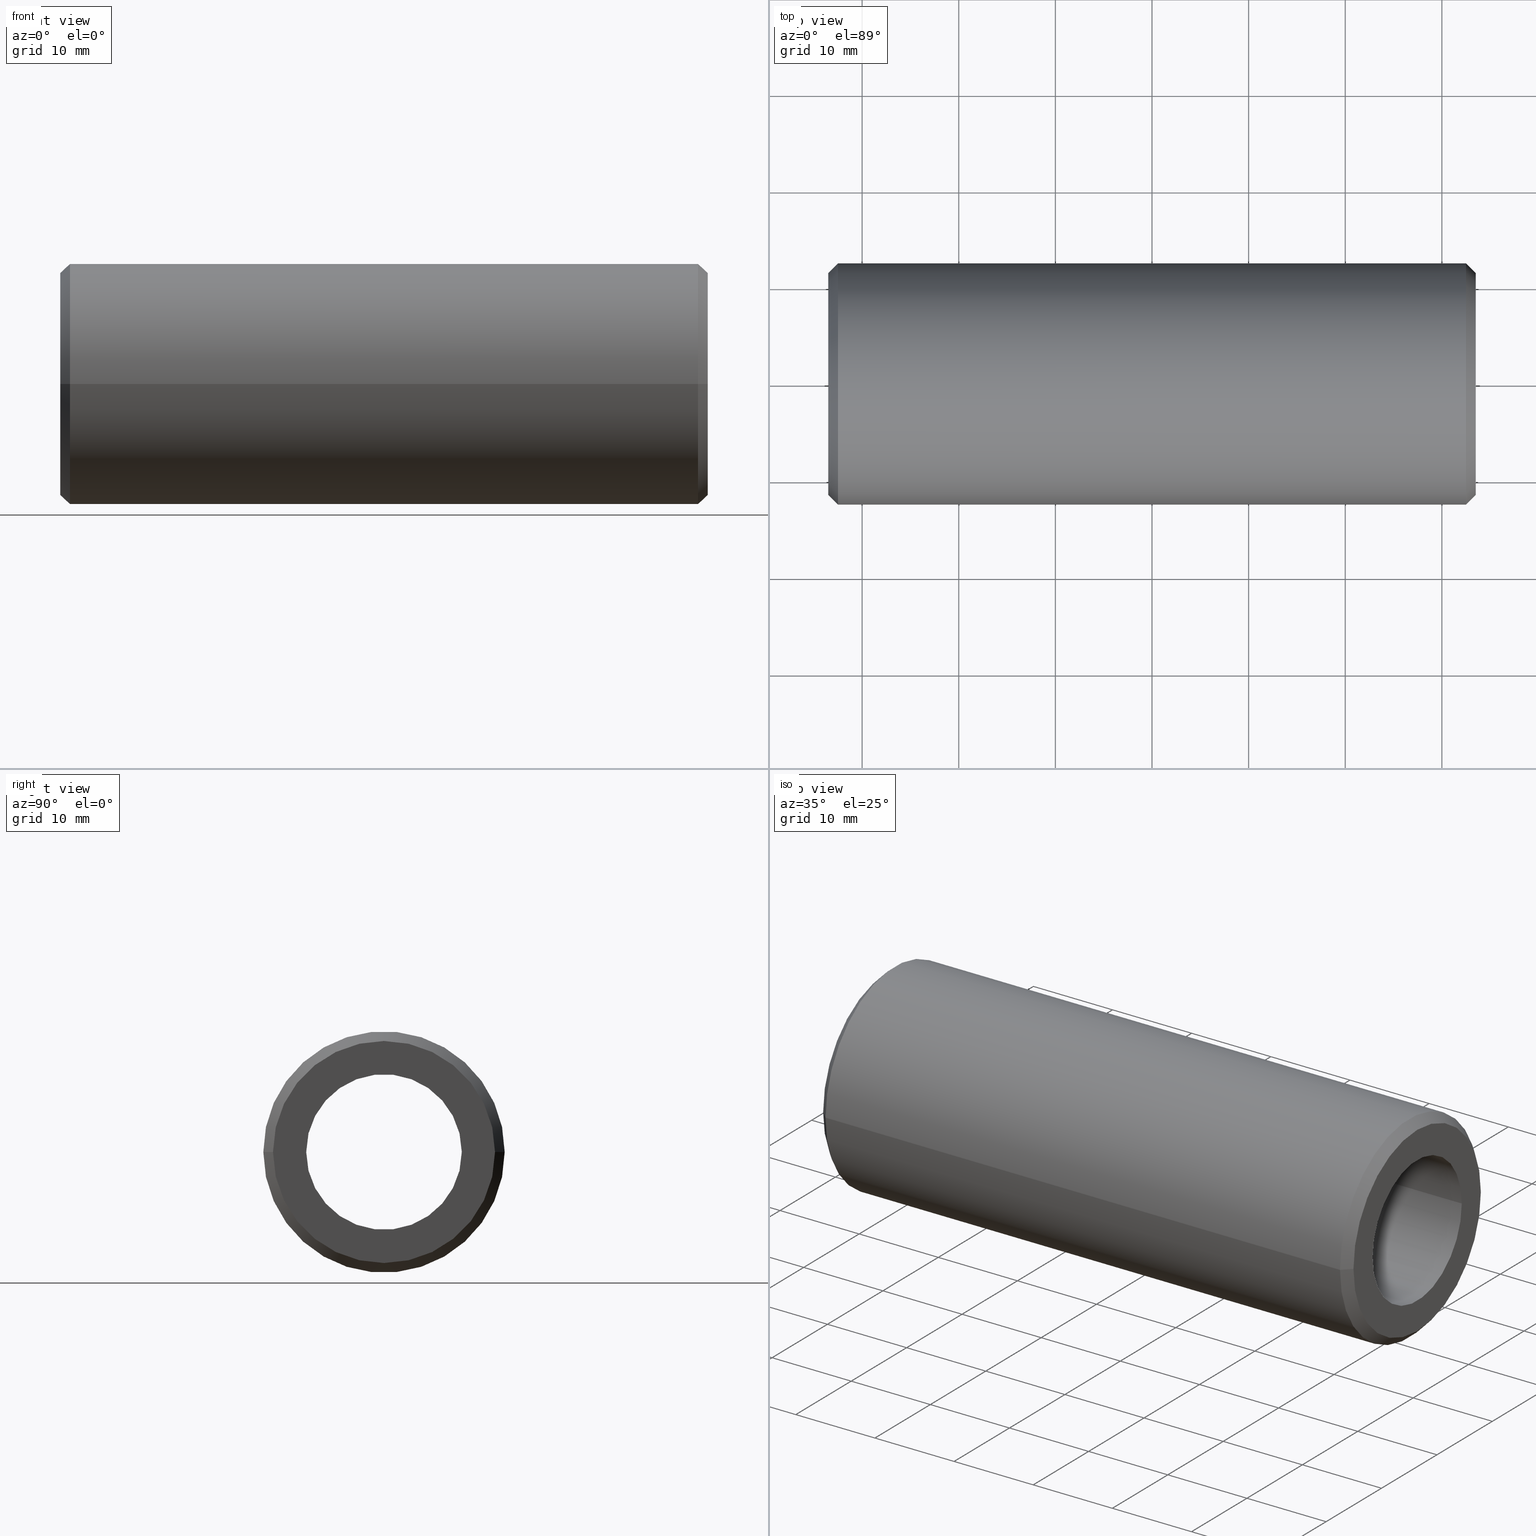
[diagram: canonical four-view strip — front | top / right | iso, engineering-drawing reading convention]
A machine part, canonical four-view strip (front | top / right | iso — engineering-drawing reading convention). The complete STEP part file that produces these views, byte-faithful:
ISO-10303-21;
HEADER;
FILE_DESCRIPTION (( 'STEP AP203' ),
    '1' );
FILE_NAME ('3927-30-15_REV_.step',
    '2026-02-22T20:34:11',
    ( '' ),
    ( '' ),
    'SwSTEP 2.0',
    'SolidWorks 2025',
    '' );
FILE_SCHEMA (( 'CONFIG_CONTROL_DESIGN' ));
ENDSEC;

DATA;
#1 = CARTESIAN_POINT ( 'NONE',  ( 0.000000000000000000, 0.000000000000000000, 0.000000000000000000 ) ) ;
#2 = EDGE_CURVE ( 'NONE', #278, #172, #194, .T. ) ;
#3 = FACE_OUTER_BOUND ( 'NONE', #87, .T. ) ;
#4 = AXIS2_PLACEMENT_3D ( 'NONE', #25, #315, #213 ) ;
#5 = DIRECTION ( 'NONE',  ( -1.000000000000000000, -3.061616997868382648E-16, 0.000000000000000000 ) ) ;
#6 = EDGE_CURVE ( 'NONE', #63, #332, #90, .T. ) ;
#7 = FACE_OUTER_BOUND ( 'NONE', #175, .T. ) ;
#8 = ORIENTED_EDGE ( 'NONE', *, *, #21, .F. ) ;
#9 = CC_DESIGN_DATE_AND_TIME_ASSIGNMENT ( #36, #168, ( #307 ) ) ;
#10 = COORDINATED_UNIVERSAL_TIME_OFFSET ( 10, 0, .AHEAD. ) ;
#11 = CONICAL_SURFACE ( 'NONE', #208, 11.49000000000000377, 0.7853981633974526089 ) ;
#12 = ORIENTED_EDGE ( 'NONE', *, *, #244, .T. ) ;
#13 = PERSON_AND_ORGANIZATION ( #300, #149 ) ;
#14 = LINE ( 'NONE', #115, #275 ) ;
#15 = VERTEX_POINT ( 'NONE', #234 ) ;
#16 = APPROVAL_STATUS ( 'not_yet_approved' ) ;
#17 = DIRECTION ( 'NONE',  ( -5.555559570782408784E-16, 1.000000000000000000, 0.000000000000000000 ) ) ;
#18 = DATE_AND_TIME ( #253, #271 ) ;
#19 = EDGE_LOOP ( 'NONE', ( #246, #199 ) ) ;
#20 = CARTESIAN_POINT ( 'NONE',  ( -33.50000000000000000, -8.388830574159368693E-15, 0.000000000000000000 ) ) ;
#21 = EDGE_CURVE ( 'NONE', #314, #63, #205, .T. ) ;
#22 = DIRECTION ( 'NONE',  ( 1.000000000000000000, 3.061616997868382648E-16, -0.000000000000000000 ) ) ;
#23 = VECTOR ( 'NONE', #51, 1000.000000000000000 ) ;
#24 = DIRECTION ( 'NONE',  ( 1.000000000000000000, 3.061616997868385113E-16, 0.000000000000000000 ) ) ;
#25 = CARTESIAN_POINT ( 'NONE',  ( 33.50000000000000000, 1.212400331155879387E-14, 0.000000000000000000 ) ) ;
#26 = LINE ( 'NONE', #97, #121 ) ;
#27 = VECTOR ( 'NONE', #42, 1000.000000000000000 ) ;
#28 = CARTESIAN_POINT ( 'NONE',  ( -33.50000000000000000, -8.388830574159368693E-15, 0.000000000000000000 ) ) ;
#29 = EDGE_CURVE ( 'NONE', #291, #314, #14, .T. ) ;
#30 = ORIENTED_EDGE ( 'NONE', *, *, #331, .F. ) ;
#31 =( LENGTH_UNIT ( ) NAMED_UNIT ( * ) SI_UNIT ( .MILLI., .METRE. ) );
#32 = APPLICATION_CONTEXT ( 'configuration controlled 3d designs of mechanical parts and assemblies' ) ;
#33 = APPROVAL_STATUS ( 'not_yet_approved' ) ;
#34 = APPROVAL_ROLE ( '' ) ;
#35 = ORIENTED_EDGE ( 'NONE', *, *, #295, .F. ) ;
#36 = DATE_AND_TIME ( #227, #292 ) ;
#37 = VERTEX_POINT ( 'NONE', #228 ) ;
#38 = CIRCLE ( 'NONE', #330, 8.050000000000000711 ) ;
#39 = DATE_AND_TIME ( #166, #198 ) ;
#40 = ORIENTED_EDGE ( 'NONE', *, *, #53, .T. ) ;
#41 = ADVANCED_FACE ( 'NONE', ( #202 ), #147, .T. ) ;
#42 = DIRECTION ( 'NONE',  ( 1.000000000000000000, 3.061616997868382648E-16, -0.000000000000000000 ) ) ;
#43 = COORDINATED_UNIVERSAL_TIME_OFFSET ( 10, 0, .AHEAD. ) ;
#44 = AXIS2_PLACEMENT_3D ( 'NONE', #317, #212, #319 ) ;
#45 = LINE ( 'NONE', #148, #296 ) ;
#46 = CONICAL_SURFACE ( 'NONE', #347, 11.49000000000000377, 0.7853981633974526089 ) ;
#47 = FACE_BOUND ( 'NONE', #335, .T. ) ;
#48 = DIRECTION ( 'NONE',  ( 1.000000000000000000, 3.061616997868382648E-16, -0.000000000000000000 ) ) ;
#49 = DIRECTION ( 'NONE',  ( 1.000000000000000000, 3.061616997868382648E-16, -0.000000000000000000 ) ) ;
#50 = DIRECTION ( 'NONE',  ( -6.039072153095931897E-16, 1.000000000000000000, 0.000000000000000000 ) ) ;
#51 = DIRECTION ( 'NONE',  ( 1.000000000000000000, 3.061616997868382648E-16, -0.000000000000000000 ) ) ;
#52 = DIRECTION ( 'NONE',  ( 3.061616997868382648E-16, -1.000000000000000000, 0.000000000000000000 ) ) ;
#53 = EDGE_CURVE ( 'NONE', #15, #332, #45, .T. ) ;
#54 = DIRECTION ( 'NONE',  ( 1.000000000000000000, 3.061616997868382648E-16, 0.000000000000000000 ) ) ;
#55 = ORIENTED_EDGE ( 'NONE', *, *, #341, .F. ) ;
#56 = CARTESIAN_POINT ( 'NONE',  ( 32.49999999999999289, 12.49000000000001087, 0.000000000000000000 ) ) ;
#57 = PERSON_AND_ORGANIZATION_ROLE ( 'design_owner' ) ;
#58 = ORIENTED_EDGE ( 'NONE', *, *, #140, .F. ) ;
#59 = CC_DESIGN_APPROVAL ( #264, ( #307 ) ) ;
#60 = DESIGN_CONTEXT ( 'detailed design', #285, 'design' ) ;
#61 = PERSON_AND_ORGANIZATION_ROLE ( 'classification_officer' ) ;
#62 = PERSON_AND_ORGANIZATION_ROLE ( 'creator' ) ;
#63 = VERTEX_POINT ( 'NONE', #183 ) ;
#64 = PERSON_AND_ORGANIZATION_ROLE ( 'creator' ) ;
#65 = ORIENTED_EDGE ( 'NONE', *, *, #230, .T. ) ;
#66 = ADVANCED_FACE ( 'NONE', ( #123 ), #11, .T. ) ;
#67 = CIRCLE ( 'NONE', #326, 12.49000000000000021 ) ;
#68 = ORIENTED_EDGE ( 'NONE', *, *, #244, .F. ) ;
#69 = COORDINATED_UNIVERSAL_TIME_OFFSET ( 10, 0, .AHEAD. ) ;
#70 = DIRECTION ( 'NONE',  ( 0.7071067811865445751, -0.7071067811865503483, 8.659560562354968603E-17 ) ) ;
#71 = ORIENTED_EDGE ( 'NONE', *, *, #209, .F. ) ;
#72 = CONICAL_SURFACE ( 'NONE', #125, 12.49000000000000021, 0.7853981633974526089 ) ;
#73 = FACE_BOUND ( 'NONE', #122, .T. ) ;
#74 = DIRECTION ( 'NONE',  ( 5.555559570782408784E-16, -1.000000000000000000, 0.000000000000000000 ) ) ;
#75 = CARTESIAN_POINT ( 'NONE',  ( 32.50000000000000000, 1.181784161177195757E-14, 0.000000000000000000 ) ) ;
#76 = DIRECTION ( 'NONE',  ( -5.555559570782408784E-16, 1.000000000000000000, 0.000000000000000000 ) ) ;
#77 = DIRECTION ( 'NONE',  ( -0.7071067811865445751, 0.7071067811865503483, 8.659560562354968603E-17 ) ) ;
#78 = ADVANCED_FACE ( 'NONE', ( #239 ), #95, .F. ) ;
#79 = DIRECTION ( 'NONE',  ( -0.7071067811865441310, -0.7071067811865507924, 0.000000000000000000 ) ) ;
#80 = DIRECTION ( 'NONE',  ( 1.000000000000000000, 3.061616997868385113E-16, 0.000000000000000000 ) ) ;
#81 = DIRECTION ( 'NONE',  ( -1.000000000000000000, -3.061616997868373280E-16, -0.000000000000000000 ) ) ;
#82 = PERSON_AND_ORGANIZATION ( #300, #149 ) ;
#83 = CARTESIAN_POINT ( 'NONE',  ( 33.50000000000000000, 1.212400331155879702E-14, 0.000000000000000000 ) ) ;
#84 = ORIENTED_EDGE ( 'NONE', *, *, #177, .T. ) ;
#85 = APPROVAL_PERSON_ORGANIZATION ( #170, #151, #142 ) ;
#86 = ADVANCED_BREP_SHAPE_REPRESENTATION ( '3927-30-15_REV_', ( #348, #322 ), #130 ) ;
#87 = EDGE_LOOP ( 'NONE', ( #35, #273, #107, #71 ) ) ;
#88 = EDGE_CURVE ( 'NONE', #314, #15, #193, .T. ) ;
#89 = CARTESIAN_POINT ( 'NONE',  ( -33.49999999999999289, -12.49000000000000732, 1.529583852135044146E-15 ) ) ;
#90 = CIRCLE ( 'NONE', #207, 12.49000000000000021 ) ;
#91 = CONICAL_SURFACE ( 'NONE', #298, 12.49000000000000021, 0.7853981633974526089 ) ;
#92 = CC_DESIGN_PERSON_AND_ORGANIZATION_ASSIGNMENT ( #260, #280, ( #197 ) ) ;
#93 = DIRECTION ( 'NONE',  ( -1.000000000000000000, -3.061616997868373280E-16, -0.000000000000000000 ) ) ;
#94 = ORIENTED_EDGE ( 'NONE', *, *, #188, .T. ) ;
#95 = CYLINDRICAL_SURFACE ( 'NONE', #320, 8.050000000000000711 ) ;
#96 = AXIS2_PLACEMENT_3D ( 'NONE', #128, #48, #179 ) ;
#97 = CARTESIAN_POINT ( 'NONE',  ( -33.50000000000000711, 11.48999999999999488, 0.000000000000000000 ) ) ;
#98 = CARTESIAN_POINT ( 'NONE',  ( -33.50000000000000000, -8.388830574159368693E-15, 0.000000000000000000 ) ) ;
#99 = EDGE_CURVE ( 'NONE', #306, #328, #185, .T. ) ;
#100 = DIRECTION ( 'NONE',  ( 1.000000000000000000, 3.061616997868382648E-16, -0.000000000000000000 ) ) ;
#101 = PLANE ( 'NONE',  #266 ) ;
#102 = FACE_OUTER_BOUND ( 'NONE', #206, .T. ) ;
#103 = DIRECTION ( 'NONE',  ( 0.000000000000000000, 0.000000000000000000, 1.000000000000000000 ) ) ;
#104 = CC_DESIGN_DATE_AND_TIME_ASSIGNMENT ( #39, #200, ( #144 ) ) ;
#105 = CIRCLE ( 'NONE', #112, 12.49000000000000021 ) ;
#106 = DIRECTION ( 'NONE',  ( 0.000000000000000000, 1.000000000000000000, 0.000000000000000000 ) ) ;
#107 = ORIENTED_EDGE ( 'NONE', *, *, #230, .F. ) ;
#108 = CARTESIAN_POINT ( 'NONE',  ( -33.50000000000000000, -8.388830574159368693E-15, 0.000000000000000000 ) ) ;
#109 = PRODUCT ( '3927-30-15_REV_', '3927-30-15_REV_', '', ( #223 ) ) ;
#110 = APPROVAL_DATE_TIME ( #18, #151 ) ;
#111 = ORIENTED_EDGE ( 'NONE', *, *, #153, .T. ) ;
#112 = AXIS2_PLACEMENT_3D ( 'NONE', #262, #346, #237 ) ;
#113 = EDGE_CURVE ( 'NONE', #328, #306, #241, .T. ) ;
#114 = DATE_AND_TIME ( #258, #305 ) ;
#115 = CARTESIAN_POINT ( 'NONE',  ( -33.49999999999999289, -11.49000000000001265, 1.407119172220309195E-15 ) ) ;
#116 = PERSON_AND_ORGANIZATION ( #300, #149 ) ;
#117 = ORIENTED_EDGE ( 'NONE', *, *, #153, .F. ) ;
#118 = APPROVAL ( #288, 'UNSPECIFIED' ) ;
#119 = AXIS2_PLACEMENT_3D ( 'NONE', #259, #174, #17 ) ;
#120 = EDGE_LOOP ( 'NONE', ( #167, #219, #232, #313 ) ) ;
#121 = VECTOR ( 'NONE', #129, 1000.000000000000114 ) ;
#122 = EDGE_LOOP ( 'NONE', ( #171, #324 ) ) ;
#123 = FACE_OUTER_BOUND ( 'NONE', #120, .T. ) ;
#124 = LINE ( 'NONE', #178, #23 ) ;
#125 = AXIS2_PLACEMENT_3D ( 'NONE', #344, #267, #214 ) ;
#126 = ADVANCED_FACE ( 'NONE', ( #345 ), #72, .T. ) ;
#127 = DIRECTION ( 'NONE',  ( 1.000000000000000000, 3.061616997868382648E-16, 0.000000000000000000 ) ) ;
#128 = CARTESIAN_POINT ( 'NONE',  ( 33.50000000000000000, 1.212400331155879702E-14, 0.000000000000000000 ) ) ;
#129 = DIRECTION ( 'NONE',  ( 0.7071067811865441310, 0.7071067811865507924, 0.000000000000000000 ) ) ;
#130 =( GEOMETRIC_REPRESENTATION_CONTEXT ( 3 ) GLOBAL_UNCERTAINTY_ASSIGNED_CONTEXT ( ( #302 ) ) GLOBAL_UNIT_ASSIGNED_CONTEXT ( ( #31, #189, #245 ) ) REPRESENTATION_CONTEXT ( 'NONE', 'WORKASPACE' ) );
#131 = DIRECTION ( 'NONE',  ( -6.039072153095931897E-16, 1.000000000000000000, 0.000000000000000000 ) ) ;
#132 = DIRECTION ( 'NONE',  ( -1.000000000000000000, -3.061616997868382648E-16, 0.000000000000000000 ) ) ;
#133 = CARTESIAN_POINT ( 'NONE',  ( 33.50000000000000000, 8.050000000000011369, 0.000000000000000000 ) ) ;
#134 = EDGE_LOOP ( 'NONE', ( #84, #310 ) ) ;
#135 = DIRECTION ( 'NONE',  ( 0.000000000000000000, 1.000000000000000000, 0.000000000000000000 ) ) ;
#136 = CIRCLE ( 'NONE', #336, 11.48999999999998956 ) ;
#137 = DIRECTION ( 'NONE',  ( 1.000000000000000000, 0.000000000000000000, 0.000000000000000000 ) ) ;
#138 = COORDINATED_UNIVERSAL_TIME_OFFSET ( 10, 0, .AHEAD. ) ;
#139 = ORIENTED_EDGE ( 'NONE', *, *, #2, .T. ) ;
#140 = EDGE_CURVE ( 'NONE', #201, #284, #211, .T. ) ;
#141 = AXIS2_PLACEMENT_3D ( 'NONE', #203, #338, #312 ) ;
#142 = APPROVAL_ROLE ( '' ) ;
#143 = ORIENTED_EDGE ( 'NONE', *, *, #21, .T. ) ;
#144 = SECURITY_CLASSIFICATION ( '', '', #283 ) ;
#145 = APPROVAL_DATE_TIME ( #114, #118 ) ;
#146 = ORIENTED_EDGE ( 'NONE', *, *, #341, .T. ) ;
#147 = CYLINDRICAL_SURFACE ( 'NONE', #119, 12.49000000000000021 ) ;
#148 = CARTESIAN_POINT ( 'NONE',  ( -33.50000000000000711, 12.48999999999999133, 0.000000000000000000 ) ) ;
#149 = ORGANIZATION ( 'UNSPECIFIED', 'UNSPECIFIED', '' ) ;
#150 = PLANE ( 'NONE',  #155 ) ;
#151 = APPROVAL ( #16, 'UNSPECIFIED' ) ;
#152 = CARTESIAN_POINT ( 'NONE',  ( -33.50000000000000000, 8.049999999999991829, 0.000000000000000000 ) ) ;
#153 = EDGE_CURVE ( 'NONE', #332, #63, #67, .T. ) ;
#154 = DIRECTION ( 'NONE',  ( 0.000000000000000000, 1.000000000000000000, 0.000000000000000000 ) ) ;
#155 = AXIS2_PLACEMENT_3D ( 'NONE', #108, #5, #52 ) ;
#156 = DIRECTION ( 'NONE',  ( 6.039072153095931897E-16, -1.000000000000000000, 0.000000000000000000 ) ) ;
#157 = CARTESIAN_POINT ( 'NONE',  ( 33.50000000000000711, -11.48999999999997712, 0.000000000000000000 ) ) ;
#158 = DIRECTION ( 'NONE',  ( 1.000000000000000000, 3.061616997868382648E-16, -0.000000000000000000 ) ) ;
#159 = CIRCLE ( 'NONE', #233, 11.49000000000000377 ) ;
#160 = CARTESIAN_POINT ( 'NONE',  ( -33.50000000000000000, -8.050000000000007816, 9.858406733136206248E-16 ) ) ;
#161 = DIRECTION ( 'NONE',  ( 1.000000000000000000, 3.061616997868382648E-16, -0.000000000000000000 ) ) ;
#162 = ORIENTED_EDGE ( 'NONE', *, *, #113, .T. ) ;
#163 = ADVANCED_FACE ( 'NONE', ( #238, #73 ), #101, .F. ) ;
#164 = APPLICATION_PROTOCOL_DEFINITION ( 'international standard', 'config_control_design', 1994, #285 ) ;
#165 = APPROVAL_PERSON_ORGANIZATION ( #277, #264, #249 ) ;
#166 = CALENDAR_DATE ( 2026, 23, 2 ) ;
#167 = ORIENTED_EDGE ( 'NONE', *, *, #29, .F. ) ;
#168 = DATE_TIME_ROLE ( 'creation_date' ) ;
#169 = EDGE_LOOP ( 'NONE', ( #287, #58, #146, #117 ) ) ;
#170 = PERSON_AND_ORGANIZATION ( #300, #149 ) ;
#171 = ORIENTED_EDGE ( 'NONE', *, *, #99, .F. ) ;
#172 = VERTEX_POINT ( 'NONE', #152 ) ;
#173 = PERSON_AND_ORGANIZATION ( #300, #149 ) ;
#174 = DIRECTION ( 'NONE',  ( 1.000000000000000000, 3.061616997868382648E-16, -0.000000000000000000 ) ) ;
#175 = EDGE_LOOP ( 'NONE', ( #250, #12, #162, #333 ) ) ;
#176 = DIRECTION ( 'NONE',  ( 3.061616997868382648E-16, -1.000000000000000000, 0.000000000000000000 ) ) ;
#177 = EDGE_CURVE ( 'NONE', #37, #291, #159, .T. ) ;
#178 = CARTESIAN_POINT ( 'NONE',  ( -33.50000000000000000, 8.049999999999991829, 0.000000000000000000 ) ) ;
#179 = DIRECTION ( 'NONE',  ( 6.039072153095939786E-16, -1.000000000000000000, 0.000000000000000000 ) ) ;
#180 = VECTOR ( 'NONE', #79, 1000.000000000000114 ) ;
#181 = ADVANCED_FACE ( 'NONE', ( #263 ), #184, .T. ) ;
#182 = CC_DESIGN_SECURITY_CLASSIFICATION ( #144, ( #197 ) ) ;
#183 = CARTESIAN_POINT ( 'NONE',  ( 32.50000000000000711, -12.48999999999998778, 1.529583852135044146E-15 ) ) ;
#184 = CYLINDRICAL_SURFACE ( 'NONE', #342, 12.49000000000000021 ) ;
#185 = CIRCLE ( 'NONE', #236, 8.050000000000000711 ) ;
#186 = CC_DESIGN_PERSON_AND_ORGANIZATION_ASSIGNMENT ( #116, #61, ( #144 ) ) ;
#187 = CARTESIAN_POINT ( 'NONE',  ( 32.50000000000000000, 1.181784161177195757E-14, 0.000000000000000000 ) ) ;
#188 = EDGE_CURVE ( 'NONE', #172, #306, #124, .T. ) ;
#189 =( NAMED_UNIT ( * ) PLANE_ANGLE_UNIT ( ) SI_UNIT ( $, .RADIAN. ) );
#190 = ORIENTED_EDGE ( 'NONE', *, *, #220, .T. ) ;
#191 = PRODUCT_DEFINITION_SHAPE ( 'NONE', 'NONE',  #307 ) ;
#192 = CARTESIAN_POINT ( 'NONE',  ( -33.50000000000000000, -8.388830574159368693E-15, 0.000000000000000000 ) ) ;
#193 = CIRCLE ( 'NONE', #44, 12.49000000000000021 ) ;
#194 = CIRCLE ( 'NONE', #141, 8.050000000000000711 ) ;
#195 = CC_DESIGN_PERSON_AND_ORGANIZATION_ASSIGNMENT ( #308, #62, ( #307 ) ) ;
#196 = COORDINATED_UNIVERSAL_TIME_OFFSET ( 10, 0, .AHEAD. ) ;
#197 = PRODUCT_DEFINITION_FORMATION_WITH_SPECIFIED_SOURCE ( 'ANY', '', #109, .NOT_KNOWN. ) ;
#198 = LOCAL_TIME ( 7, 34, 11.00000000000000000, #43 ) ;
#199 = ORIENTED_EDGE ( 'NONE', *, *, #331, .T. ) ;
#200 = DATE_TIME_ROLE ( 'classification_date' ) ;
#201 = VERTEX_POINT ( 'NONE', #157 ) ;
#202 = FACE_OUTER_BOUND ( 'NONE', #224, .T. ) ;
#203 = CARTESIAN_POINT ( 'NONE',  ( -33.50000000000000000, -8.388830574159368693E-15, 0.000000000000000000 ) ) ;
#204 = AXIS2_PLACEMENT_3D ( 'NONE', #192, #158, #106 ) ;
#205 = LINE ( 'NONE', #89, #27 ) ;
#206 = EDGE_LOOP ( 'NONE', ( #30, #190, #225, #55 ) ) ;
#207 = AXIS2_PLACEMENT_3D ( 'NONE', #255, #93, #289 ) ;
#208 = AXIS2_PLACEMENT_3D ( 'NONE', #235, #24, #50 ) ;
#209 = EDGE_CURVE ( 'NONE', #37, #15, #26, .T. ) ;
#210 = DIRECTION ( 'NONE',  ( 0.000000000000000000, 1.000000000000000000, 0.000000000000000000 ) ) ;
#211 = CIRCLE ( 'NONE', #96, 11.48999999999998956 ) ;
#212 = DIRECTION ( 'NONE',  ( 1.000000000000000000, 3.061616997868385113E-16, 0.000000000000000000 ) ) ;
#213 = DIRECTION ( 'NONE',  ( 0.000000000000000000, 1.000000000000000000, 0.000000000000000000 ) ) ;
#214 = DIRECTION ( 'NONE',  ( 5.555559570782408784E-16, -1.000000000000000000, 0.000000000000000000 ) ) ;
#215 = LOCAL_TIME ( 7, 34, 11.00000000000000000, #138 ) ;
#216 = CARTESIAN_POINT ( 'NONE',  ( -33.50000000000000000, -8.050000000000007816, 9.858406733136194415E-16 ) ) ;
#217 = CC_DESIGN_PERSON_AND_ORGANIZATION_ASSIGNMENT ( #13, #64, ( #197 ) ) ;
#218 = CARTESIAN_POINT ( 'NONE',  ( 32.50000000000000711, -12.48999999999998778, 0.000000000000000000 ) ) ;
#219 = ORIENTED_EDGE ( 'NONE', *, *, #177, .F. ) ;
#220 = EDGE_CURVE ( 'NONE', #284, #332, #294, .T. ) ;
#221 = APPLICATION_PROTOCOL_DEFINITION ( 'international standard', 'config_control_design', 1994, #32 ) ;
#222 = VECTOR ( 'NONE', #77, 1000.000000000000114 ) ;
#223 = MECHANICAL_CONTEXT ( 'NONE', #32, 'mechanical' ) ;
#224 = EDGE_LOOP ( 'NONE', ( #8, #311, #40, #111 ) ) ;
#225 = ORIENTED_EDGE ( 'NONE', *, *, #6, .F. ) ;
#226 = ORIENTED_EDGE ( 'NONE', *, *, #99, .T. ) ;
#227 = CALENDAR_DATE ( 2026, 23, 2 ) ;
#228 = CARTESIAN_POINT ( 'NONE',  ( -33.50000000000000711, 11.48999999999999488, 0.000000000000000000 ) ) ;
#229 = SHAPE_DEFINITION_REPRESENTATION ( #191, #86 ) ;
#230 = EDGE_CURVE ( 'NONE', #15, #314, #105, .T. ) ;
#231 = ORIENTED_EDGE ( 'NONE', *, *, #282, .F. ) ;
#232 = ORIENTED_EDGE ( 'NONE', *, *, #209, .T. ) ;
#233 = AXIS2_PLACEMENT_3D ( 'NONE', #265, #299, #156 ) ;
#234 = CARTESIAN_POINT ( 'NONE',  ( -32.50000000000002132, 12.48999999999999133, 0.000000000000000000 ) ) ;
#235 = CARTESIAN_POINT ( 'NONE',  ( -33.50000000000000000, -8.388830574159368693E-15, 0.000000000000000000 ) ) ;
#236 = AXIS2_PLACEMENT_3D ( 'NONE', #340, #127, #210 ) ;
#237 = DIRECTION ( 'NONE',  ( 5.555559570782408784E-16, -1.000000000000000000, 0.000000000000000000 ) ) ;
#238 = FACE_OUTER_BOUND ( 'NONE', #19, .T. ) ;
#239 = FACE_OUTER_BOUND ( 'NONE', #243, .T. ) ;
#240 = CARTESIAN_POINT ( 'NONE',  ( 32.49999999999999289, 12.49000000000001087, 1.529583852135044146E-15 ) ) ;
#241 = CIRCLE ( 'NONE', #4, 8.050000000000000711 ) ;
#242 = DIRECTION ( 'NONE',  ( 6.039072153095939786E-16, -1.000000000000000000, 0.000000000000000000 ) ) ;
#243 = EDGE_LOOP ( 'NONE', ( #68, #231, #94, #226 ) ) ;
#244 = EDGE_CURVE ( 'NONE', #278, #328, #343, .T. ) ;
#245 =( NAMED_UNIT ( * ) SI_UNIT ( $, .STERADIAN. ) SOLID_ANGLE_UNIT ( ) );
#246 = ORIENTED_EDGE ( 'NONE', *, *, #140, .T. ) ;
#247 = CIRCLE ( 'NONE', #254, 11.49000000000000377 ) ;
#248 = CARTESIAN_POINT ( 'NONE',  ( -33.50000000000000000, -8.388830574159368693E-15, 0.000000000000000000 ) ) ;
#249 = APPROVAL_ROLE ( '' ) ;
#250 = ORIENTED_EDGE ( 'NONE', *, *, #2, .F. ) ;
#251 = PRODUCT_RELATED_PRODUCT_CATEGORY ( 'detail', '', ( #109 ) ) ;
#252 = CC_DESIGN_PERSON_AND_ORGANIZATION_ASSIGNMENT ( #82, #57, ( #109 ) ) ;
#253 = CALENDAR_DATE ( 2026, 23, 2 ) ;
#254 = AXIS2_PLACEMENT_3D ( 'NONE', #269, #132, #325 ) ;
#255 = CARTESIAN_POINT ( 'NONE',  ( 32.50000000000000000, 1.181784161177195757E-14, 0.000000000000000000 ) ) ;
#256 = ADVANCED_FACE ( 'NONE', ( #323, #47 ), #150, .T. ) ;
#257 = EDGE_LOOP ( 'NONE', ( #65, #143, #339, #281 ) ) ;
#258 = CALENDAR_DATE ( 2026, 23, 2 ) ;
#259 = CARTESIAN_POINT ( 'NONE',  ( -33.50000000000000000, -8.388830574159368693E-15, 0.000000000000000000 ) ) ;
#260 = PERSON_AND_ORGANIZATION ( #300, #149 ) ;
#261 = ORIENTED_EDGE ( 'NONE', *, *, #282, .T. ) ;
#262 = CARTESIAN_POINT ( 'NONE',  ( -32.50000000000001421, -8.082668874372535555E-15, 0.000000000000000000 ) ) ;
#263 = FACE_OUTER_BOUND ( 'NONE', #257, .T. ) ;
#264 = APPROVAL ( #33, 'UNSPECIFIED' ) ;
#265 = CARTESIAN_POINT ( 'NONE',  ( -33.50000000000000000, -8.388830574159365537E-15, 0.000000000000000000 ) ) ;
#266 = AXIS2_PLACEMENT_3D ( 'NONE', #297, #321, #176 ) ;
#267 = DIRECTION ( 'NONE',  ( -1.000000000000000000, -3.061616997868373280E-16, -0.000000000000000000 ) ) ;
#268 = DIRECTION ( 'NONE',  ( -1.000000000000000000, -3.061616997868373280E-16, -0.000000000000000000 ) ) ;
#269 = CARTESIAN_POINT ( 'NONE',  ( -33.50000000000000000, -8.388830574159365537E-15, 0.000000000000000000 ) ) ;
#270 = ADVANCED_FACE ( 'NONE', ( #7 ), #304, .F. ) ;
#271 = LOCAL_TIME ( 7, 34, 11.00000000000000000, #69 ) ;
#272 = CARTESIAN_POINT ( 'NONE',  ( 33.50000000000000000, -8.049999999999988276, 9.858406733136194415E-16 ) ) ;
#273 = ORIENTED_EDGE ( 'NONE', *, *, #29, .T. ) ;
#274 = CARTESIAN_POINT ( 'NONE',  ( -32.50000000000000711, -12.49000000000000732, 1.529583852135045527E-15 ) ) ;
#275 = VECTOR ( 'NONE', #70, 1000.000000000000114 ) ;
#276 = CC_DESIGN_APPROVAL ( #118, ( #144 ) ) ;
#277 = PERSON_AND_ORGANIZATION ( #300, #149 ) ;
#278 = VERTEX_POINT ( 'NONE', #160 ) ;
#279 = CALENDAR_DATE ( 2026, 23, 2 ) ;
#280 = PERSON_AND_ORGANIZATION_ROLE ( 'design_supplier' ) ;
#281 = ORIENTED_EDGE ( 'NONE', *, *, #53, .F. ) ;
#282 = EDGE_CURVE ( 'NONE', #172, #278, #38, .T. ) ;
#283 = SECURITY_CLASSIFICATION_LEVEL ( 'unclassified' ) ;
#284 = VERTEX_POINT ( 'NONE', #329 ) ;
#285 = APPLICATION_CONTEXT ( 'configuration controlled 3d designs of mechanical parts and assemblies' ) ;
#286 = DATE_AND_TIME ( #279, #215 ) ;
#287 = ORIENTED_EDGE ( 'NONE', *, *, #220, .F. ) ;
#288 = APPROVAL_STATUS ( 'not_yet_approved' ) ;
#289 = DIRECTION ( 'NONE',  ( 5.555559570782408784E-16, -1.000000000000000000, 0.000000000000000000 ) ) ;
#290 = CLOSED_SHELL ( 'NONE', ( #318, #309, #270, #181, #41, #256, #163, #78, #66, #126 ) ) ;
#291 = VERTEX_POINT ( 'NONE', #349 ) ;
#292 = LOCAL_TIME ( 7, 34, 11.00000000000000000, #196 ) ;
#293 = DIRECTION ( 'NONE',  ( 1.000000000000000000, 3.061616997868382648E-16, -0.000000000000000000 ) ) ;
#294 = LINE ( 'NONE', #240, #222 ) ;
#295 = EDGE_CURVE ( 'NONE', #291, #37, #247, .T. ) ;
#296 = VECTOR ( 'NONE', #293, 1000.000000000000000 ) ;
#297 = CARTESIAN_POINT ( 'NONE',  ( 33.50000000000000000, 1.212400331155879387E-14, 0.000000000000000000 ) ) ;
#298 = AXIS2_PLACEMENT_3D ( 'NONE', #187, #81, #303 ) ;
#299 = DIRECTION ( 'NONE',  ( -1.000000000000000000, -3.061616997868382648E-16, 0.000000000000000000 ) ) ;
#300 = PERSON ( 'UNSPECIFIED', 'UNSPECIFIED', 'UNSPECIFIED', ('UNSPECIFIED'), ('UNSPECIFIED'), ('UNSPECIFIED') ) ;
#301 = CC_DESIGN_APPROVAL ( #151, ( #197 ) ) ;
#302 = UNCERTAINTY_MEASURE_WITH_UNIT (LENGTH_MEASURE( 1.000000000000000082E-05 ), #31, 'distance_accuracy_value', 'NONE');
#303 = DIRECTION ( 'NONE',  ( 5.555559570782408784E-16, -1.000000000000000000, 0.000000000000000000 ) ) ;
#304 = CYLINDRICAL_SURFACE ( 'NONE', #204, 8.050000000000000711 ) ;
#305 = LOCAL_TIME ( 7, 34, 11.00000000000000000, #10 ) ;
#306 = VERTEX_POINT ( 'NONE', #133 ) ;
#307 = PRODUCT_DEFINITION ( 'UNKNOWN', '', #197, #60 ) ;
#308 = PERSON_AND_ORGANIZATION ( #300, #149 ) ;
#309 = ADVANCED_FACE ( 'NONE', ( #3 ), #46, .T. ) ;
#310 = ORIENTED_EDGE ( 'NONE', *, *, #295, .T. ) ;
#311 = ORIENTED_EDGE ( 'NONE', *, *, #88, .T. ) ;
#312 = DIRECTION ( 'NONE',  ( 0.000000000000000000, 1.000000000000000000, 0.000000000000000000 ) ) ;
#313 = ORIENTED_EDGE ( 'NONE', *, *, #88, .F. ) ;
#314 = VERTEX_POINT ( 'NONE', #274 ) ;
#315 = DIRECTION ( 'NONE',  ( 1.000000000000000000, 3.061616997868382648E-16, 0.000000000000000000 ) ) ;
#316 = VECTOR ( 'NONE', #49, 1000.000000000000000 ) ;
#317 = CARTESIAN_POINT ( 'NONE',  ( -32.50000000000001421, -8.082668874372535555E-15, 0.000000000000000000 ) ) ;
#318 = ADVANCED_FACE ( 'NONE', ( #102 ), #91, .T. ) ;
#319 = DIRECTION ( 'NONE',  ( 5.555559570782408784E-16, -1.000000000000000000, 0.000000000000000000 ) ) ;
#320 = AXIS2_PLACEMENT_3D ( 'NONE', #20, #100, #154 ) ;
#321 = DIRECTION ( 'NONE',  ( -1.000000000000000000, -3.061616997868382648E-16, 0.000000000000000000 ) ) ;
#322 = AXIS2_PLACEMENT_3D ( 'NONE', #1, #103, #137 ) ;
#323 = FACE_OUTER_BOUND ( 'NONE', #134, .T. ) ;
#324 = ORIENTED_EDGE ( 'NONE', *, *, #113, .F. ) ;
#325 = DIRECTION ( 'NONE',  ( 6.039072153095931897E-16, -1.000000000000000000, 0.000000000000000000 ) ) ;
#326 = AXIS2_PLACEMENT_3D ( 'NONE', #75, #268, #74 ) ;
#327 = LINE ( 'NONE', #218, #180 ) ;
#328 = VERTEX_POINT ( 'NONE', #272 ) ;
#329 = CARTESIAN_POINT ( 'NONE',  ( 33.49999999999999289, 11.49000000000000199, 1.468351512177675783E-15 ) ) ;
#330 = AXIS2_PLACEMENT_3D ( 'NONE', #28, #54, #135 ) ;
#331 = EDGE_CURVE ( 'NONE', #284, #201, #136, .T. ) ;
#332 = VERTEX_POINT ( 'NONE', #56 ) ;
#333 = ORIENTED_EDGE ( 'NONE', *, *, #188, .F. ) ;
#334 = APPROVAL_DATE_TIME ( #286, #264 ) ;
#335 = EDGE_LOOP ( 'NONE', ( #261, #139 ) ) ;
#336 = AXIS2_PLACEMENT_3D ( 'NONE', #83, #161, #242 ) ;
#337 = APPROVAL_PERSON_ORGANIZATION ( #173, #118, #34 ) ;
#338 = DIRECTION ( 'NONE',  ( 1.000000000000000000, 3.061616997868382648E-16, 0.000000000000000000 ) ) ;
#339 = ORIENTED_EDGE ( 'NONE', *, *, #6, .T. ) ;
#340 = CARTESIAN_POINT ( 'NONE',  ( 33.50000000000000000, 1.212400331155879387E-14, 0.000000000000000000 ) ) ;
#341 = EDGE_CURVE ( 'NONE', #201, #63, #327, .T. ) ;
#342 = AXIS2_PLACEMENT_3D ( 'NONE', #98, #22, #76 ) ;
#343 = LINE ( 'NONE', #216, #316 ) ;
#344 = CARTESIAN_POINT ( 'NONE',  ( 32.50000000000000000, 1.181784161177195757E-14, 0.000000000000000000 ) ) ;
#345 = FACE_OUTER_BOUND ( 'NONE', #169, .T. ) ;
#346 = DIRECTION ( 'NONE',  ( 1.000000000000000000, 3.061616997868385113E-16, 0.000000000000000000 ) ) ;
#347 = AXIS2_PLACEMENT_3D ( 'NONE', #248, #80, #131 ) ;
#348 = MANIFOLD_SOLID_BREP ( 'Chamfer1', #290 ) ;
#349 = CARTESIAN_POINT ( 'NONE',  ( -33.49999999999999289, -11.49000000000001265, 1.468351512177676572E-15 ) ) ;
ENDSEC;
END-ISO-10303-21;
